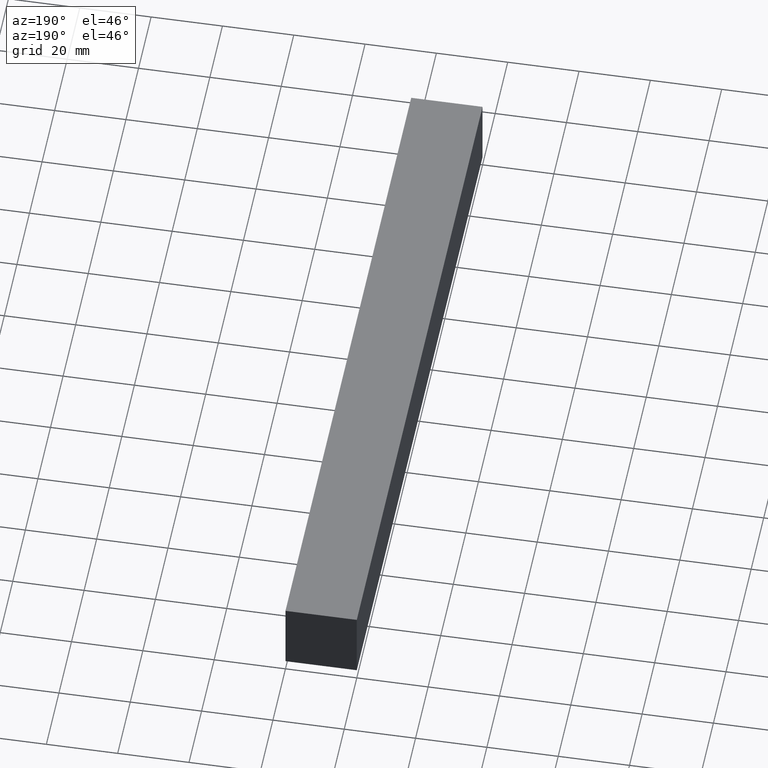
[diagram: clean part render]
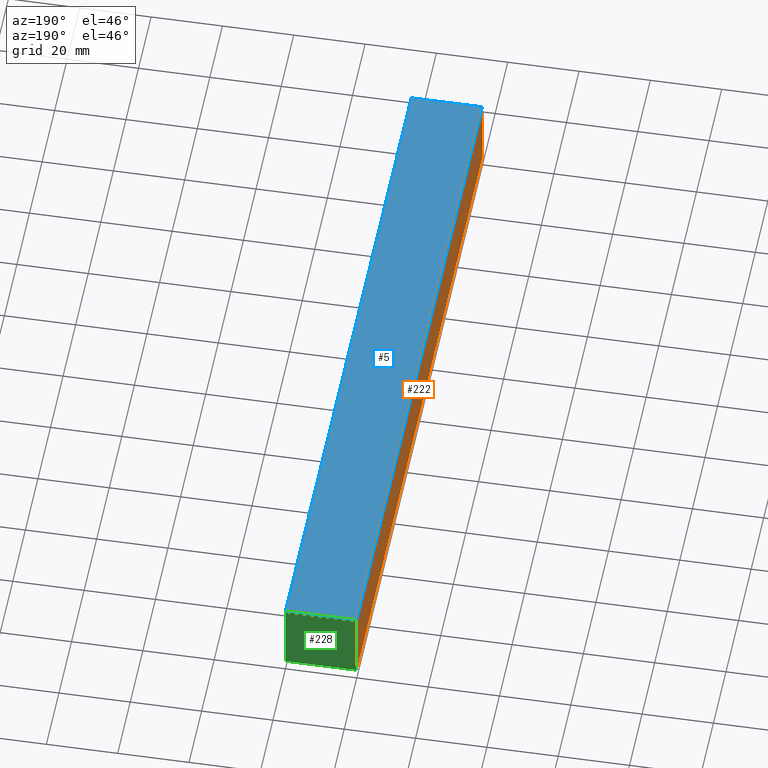
[diagram: same view with three faces highlighted in distinct colors, each labeled with its STEP entity id]
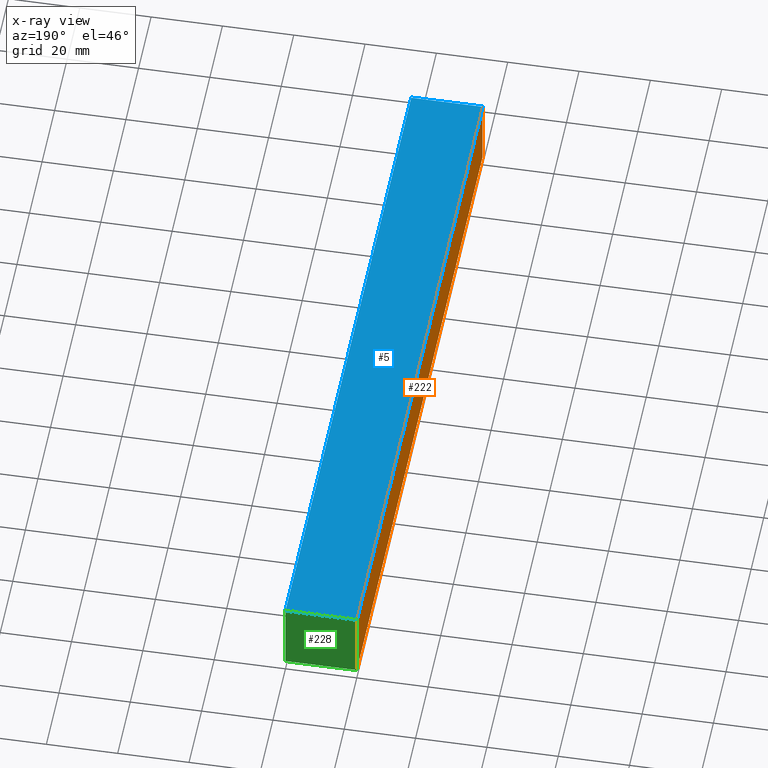
[diagram: x-ray of the same camera — body ghosted, the three highlighted faces saturated]
A machine part, auxiliary view with three faces highlighted in distinct colors.
The next image is the same camera in x-ray (body ghosted, the three faces saturated) — at least one of them is partly hidden behind the body in this view.
Their STEP definitions:

[orange] entity #222 — the highlighted planar face has unit normal (1, 0, 0).
#4 = DIRECTION ( 'NONE',  ( 1.000000000000000000, 0.0000000000000000000, 0.0000000000000000000 ) ) ;
#9 = CARTESIAN_POINT ( 'NONE',  ( 0.0000000000000000000, 0.0000000000000000000, 0.0000000000000000000 ) ) ;
#13 = DIRECTION ( 'NONE',  ( 0.0000000000000000000, -1.000000000000000000, 0.0000000000000000000 ) ) ;
#15 = DIRECTION ( 'NONE',  ( 0.0000000000000000000, -1.000000000000000000, 0.0000000000000000000 ) ) ;
#24 = CARTESIAN_POINT ( 'NONE',  ( 0.0000000000000000000, 0.0000000000000000000, 0.0000000000000000000 ) ) ;
#27 = VERTEX_POINT ( 'NONE', #24 ) ;
#39 = DIRECTION ( 'NONE',  ( 0.0000000000000000000, 0.0000000000000000000, 1.000000000000000000 ) ) ;
#49 = ORIENTED_EDGE ( 'NONE', *, *, #215, .F. ) ;
#65 = DIRECTION ( 'NONE',  ( 0.0000000000000000000, 0.0000000000000000000, 1.000000000000000000 ) ) ;
#66 = VECTOR ( 'NONE', #65, 1000.000000000000000 ) ;
#72 = VECTOR ( 'NONE', #39, 1000.000000000000000 ) ;
#87 = CARTESIAN_POINT ( 'NONE',  ( 0.0000000000000000000, 200.0000000000000000, 20.00000000000000000 ) ) ;
#99 = CARTESIAN_POINT ( 'NONE',  ( 0.0000000000000000000, 1000.000000000000000, 20.00000000000000000 ) ) ;
#114 = VERTEX_POINT ( 'NONE', #87 ) ;
#129 = LINE ( 'NONE', #230, #72 ) ;
#132 = LINE ( 'NONE', #204, #227 ) ;
#135 = VERTEX_POINT ( 'NONE', #233 ) ;
#149 = ORIENTED_EDGE ( 'NONE', *, *, #192, .T. ) ;
#157 = ORIENTED_EDGE ( 'NONE', *, *, #177, .T. ) ;
#163 = VERTEX_POINT ( 'NONE', #202 ) ;
#167 = FACE_OUTER_BOUND ( 'NONE', #198, .T. ) ;
#169 = DIRECTION ( 'NONE',  ( 0.0000000000000000000, 0.0000000000000000000, -1.000000000000000000 ) ) ;
#174 = LINE ( 'NONE', #99, #216 ) ;
#177 = EDGE_CURVE ( 'NONE', #27, #163, #229, .T. ) ;
#186 = PLANE ( 'NONE',  #199 ) ;
#192 = EDGE_CURVE ( 'NONE', #135, #27, #132, .T. ) ;
#197 = CARTESIAN_POINT ( 'NONE',  ( 0.0000000000000000000, 1000.000000000000000, 0.0000000000000000000 ) ) ;
#198 = EDGE_LOOP ( 'NONE', ( #157, #217, #49, #149 ) ) ;
#199 = AXIS2_PLACEMENT_3D ( 'NONE', #197, #4, #169 ) ;
#202 = CARTESIAN_POINT ( 'NONE',  ( 0.0000000000000000000, 0.0000000000000000000, 20.00000000000000000 ) ) ;
#203 = EDGE_CURVE ( 'NONE', #114, #163, #174, .T. ) ;
#204 = CARTESIAN_POINT ( 'NONE',  ( 0.0000000000000000000, 1000.000000000000000, 0.0000000000000000000 ) ) ;
#215 = EDGE_CURVE ( 'NONE', #135, #114, #129, .T. ) ;
#216 = VECTOR ( 'NONE', #13, 1000.000000000000000 ) ;
#217 = ORIENTED_EDGE ( 'NONE', *, *, #203, .F. ) ;
#222 = ADVANCED_FACE ( 'NONE', ( #167 ), #186, .F. ) ;
#227 = VECTOR ( 'NONE', #15, 1000.000000000000000 ) ;
#229 = LINE ( 'NONE', #9, #66 ) ;
#230 = CARTESIAN_POINT ( 'NONE',  ( 0.0000000000000000000, 200.0000000000000000, 0.0000000000000000000 ) ) ;
#233 = CARTESIAN_POINT ( 'NONE',  ( 0.0000000000000000000, 200.0000000000000000, 0.0000000000000000000 ) ) ;

[blue] entity #5 — the highlighted planar face has unit normal (0, 0, -1).
#2 = DIRECTION ( 'NONE',  ( 0.0000000000000000000, 0.0000000000000000000, -1.000000000000000000 ) ) ;
#5 = ADVANCED_FACE ( 'NONE', ( #121 ), #51, .F. ) ;
#11 = VECTOR ( 'NONE', #25, 1000.000000000000000 ) ;
#13 = DIRECTION ( 'NONE',  ( 0.0000000000000000000, -1.000000000000000000, 0.0000000000000000000 ) ) ;
#19 = VECTOR ( 'NONE', #89, 1000.000000000000000 ) ;
#25 = DIRECTION ( 'NONE',  ( 0.0000000000000000000, -1.000000000000000000, 0.0000000000000000000 ) ) ;
#40 = AXIS2_PLACEMENT_3D ( 'NONE', #117, #2, #97 ) ;
#47 = LINE ( 'NONE', #172, #19 ) ;
#51 = PLANE ( 'NONE',  #40 ) ;
#52 = EDGE_CURVE ( 'NONE', #158, #214, #101, .T. ) ;
#62 = ORIENTED_EDGE ( 'NONE', *, *, #203, .T. ) ;
#78 = ORIENTED_EDGE ( 'NONE', *, *, #52, .F. ) ;
#86 = CARTESIAN_POINT ( 'NONE',  ( 20.00000000000000000, 0.0000000000000000000, 20.00000000000000000 ) ) ;
#87 = CARTESIAN_POINT ( 'NONE',  ( 0.0000000000000000000, 200.0000000000000000, 20.00000000000000000 ) ) ;
#89 = DIRECTION ( 'NONE',  ( 1.000000000000000000, 0.0000000000000000000, 0.0000000000000000000 ) ) ;
#97 = DIRECTION ( 'NONE',  ( -1.000000000000000000, 0.0000000000000000000, 0.0000000000000000000 ) ) ;
#99 = CARTESIAN_POINT ( 'NONE',  ( 0.0000000000000000000, 1000.000000000000000, 20.00000000000000000 ) ) ;
#101 = LINE ( 'NONE', #178, #11 ) ;
#114 = VERTEX_POINT ( 'NONE', #87 ) ;
#117 = CARTESIAN_POINT ( 'NONE',  ( 0.0000000000000000000, 1000.000000000000000, 20.00000000000000000 ) ) ;
#121 = FACE_OUTER_BOUND ( 'NONE', #224, .T. ) ;
#128 = EDGE_CURVE ( 'NONE', #163, #214, #196, .T. ) ;
#141 = DIRECTION ( 'NONE',  ( 1.000000000000000000, 0.0000000000000000000, 0.0000000000000000000 ) ) ;
#158 = VERTEX_POINT ( 'NONE', #235 ) ;
#159 = VECTOR ( 'NONE', #141, 1000.000000000000000 ) ;
#163 = VERTEX_POINT ( 'NONE', #202 ) ;
#166 = EDGE_CURVE ( 'NONE', #114, #158, #47, .T. ) ;
#172 = CARTESIAN_POINT ( 'NONE',  ( 0.0000000000000000000, 200.0000000000000000, 20.00000000000000000 ) ) ;
#174 = LINE ( 'NONE', #99, #216 ) ;
#178 = CARTESIAN_POINT ( 'NONE',  ( 20.00000000000000000, 1000.000000000000000, 20.00000000000000000 ) ) ;
#180 = ORIENTED_EDGE ( 'NONE', *, *, #166, .F. ) ;
#196 = LINE ( 'NONE', #205, #159 ) ;
#202 = CARTESIAN_POINT ( 'NONE',  ( 0.0000000000000000000, 0.0000000000000000000, 20.00000000000000000 ) ) ;
#203 = EDGE_CURVE ( 'NONE', #114, #163, #174, .T. ) ;
#205 = CARTESIAN_POINT ( 'NONE',  ( 0.0000000000000000000, 0.0000000000000000000, 20.00000000000000000 ) ) ;
#206 = ORIENTED_EDGE ( 'NONE', *, *, #128, .T. ) ;
#214 = VERTEX_POINT ( 'NONE', #86 ) ;
#216 = VECTOR ( 'NONE', #13, 1000.000000000000000 ) ;
#224 = EDGE_LOOP ( 'NONE', ( #206, #78, #180, #62 ) ) ;
#235 = CARTESIAN_POINT ( 'NONE',  ( 20.00000000000000000, 200.0000000000000000, 20.00000000000000000 ) ) ;

[green] entity #228 — the highlighted planar face has unit normal (0, 1, 0).
#6 = DIRECTION ( 'NONE',  ( 1.000000000000000000, 0.0000000000000000000, 0.0000000000000000000 ) ) ;
#19 = VECTOR ( 'NONE', #89, 1000.000000000000000 ) ;
#21 = CARTESIAN_POINT ( 'NONE',  ( 20.00000000000000000, 200.0000000000000000, 0.0000000000000000000 ) ) ;
#23 = FACE_OUTER_BOUND ( 'NONE', #85, .T. ) ;
#29 = EDGE_CURVE ( 'NONE', #158, #116, #146, .T. ) ;
#33 = VECTOR ( 'NONE', #218, 1000.000000000000000 ) ;
#39 = DIRECTION ( 'NONE',  ( 0.0000000000000000000, 0.0000000000000000000, 1.000000000000000000 ) ) ;
#47 = LINE ( 'NONE', #172, #19 ) ;
#59 = ORIENTED_EDGE ( 'NONE', *, *, #166, .T. ) ;
#72 = VECTOR ( 'NONE', #39, 1000.000000000000000 ) ;
#85 = EDGE_LOOP ( 'NONE', ( #59, #234, #188, #173 ) ) ;
#87 = CARTESIAN_POINT ( 'NONE',  ( 0.0000000000000000000, 200.0000000000000000, 20.00000000000000000 ) ) ;
#89 = DIRECTION ( 'NONE',  ( 1.000000000000000000, 0.0000000000000000000, 0.0000000000000000000 ) ) ;
#92 = AXIS2_PLACEMENT_3D ( 'NONE', #189, #137, #6 ) ;
#95 = LINE ( 'NONE', #221, #33 ) ;
#96 = EDGE_CURVE ( 'NONE', #116, #135, #95, .T. ) ;
#114 = VERTEX_POINT ( 'NONE', #87 ) ;
#116 = VERTEX_POINT ( 'NONE', #21 ) ;
#124 = VECTOR ( 'NONE', #207, 1000.000000000000000 ) ;
#129 = LINE ( 'NONE', #230, #72 ) ;
#135 = VERTEX_POINT ( 'NONE', #233 ) ;
#137 = DIRECTION ( 'NONE',  ( -0.0000000000000000000, 1.000000000000000000, 0.0000000000000000000 ) ) ;
#146 = LINE ( 'NONE', #231, #124 ) ;
#158 = VERTEX_POINT ( 'NONE', #235 ) ;
#164 = PLANE ( 'NONE',  #92 ) ;
#166 = EDGE_CURVE ( 'NONE', #114, #158, #47, .T. ) ;
#172 = CARTESIAN_POINT ( 'NONE',  ( 0.0000000000000000000, 200.0000000000000000, 20.00000000000000000 ) ) ;
#173 = ORIENTED_EDGE ( 'NONE', *, *, #215, .T. ) ;
#188 = ORIENTED_EDGE ( 'NONE', *, *, #96, .T. ) ;
#189 = CARTESIAN_POINT ( 'NONE',  ( 0.0000000000000000000, 200.0000000000000000, 0.0000000000000000000 ) ) ;
#207 = DIRECTION ( 'NONE',  ( 0.0000000000000000000, 0.0000000000000000000, -1.000000000000000000 ) ) ;
#215 = EDGE_CURVE ( 'NONE', #135, #114, #129, .T. ) ;
#218 = DIRECTION ( 'NONE',  ( -1.000000000000000000, 0.0000000000000000000, 0.0000000000000000000 ) ) ;
#221 = CARTESIAN_POINT ( 'NONE',  ( 20.00000000000000000, 200.0000000000000000, 0.0000000000000000000 ) ) ;
#228 = ADVANCED_FACE ( 'NONE', ( #23 ), #164, .T. ) ;
#230 = CARTESIAN_POINT ( 'NONE',  ( 0.0000000000000000000, 200.0000000000000000, 0.0000000000000000000 ) ) ;
#231 = CARTESIAN_POINT ( 'NONE',  ( 20.00000000000000000, 200.0000000000000000, 20.00000000000000000 ) ) ;
#233 = CARTESIAN_POINT ( 'NONE',  ( 0.0000000000000000000, 200.0000000000000000, 0.0000000000000000000 ) ) ;
#234 = ORIENTED_EDGE ( 'NONE', *, *, #29, .T. ) ;
#235 = CARTESIAN_POINT ( 'NONE',  ( 20.00000000000000000, 200.0000000000000000, 20.00000000000000000 ) ) ;